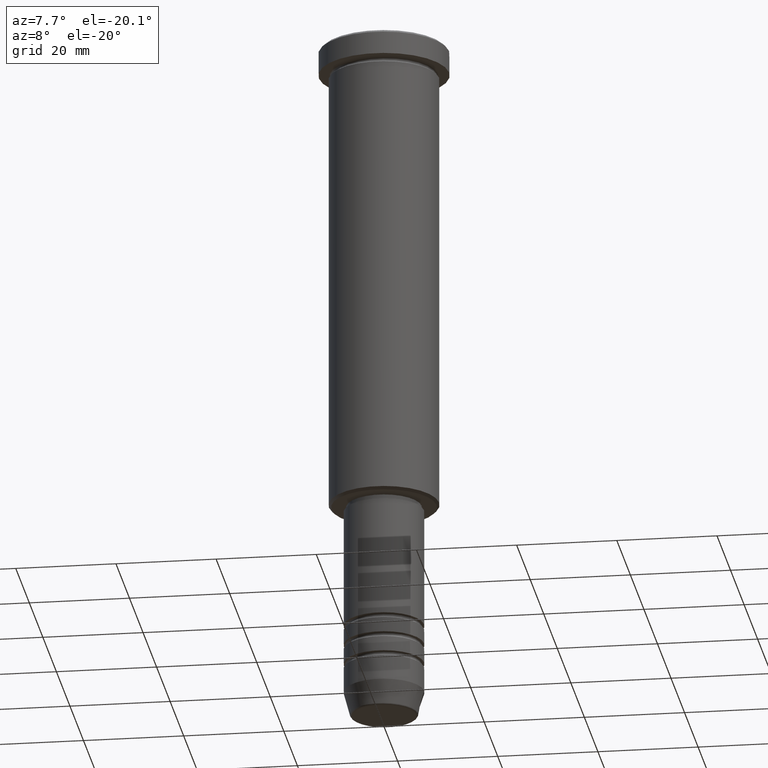
[diagram: clean part render]
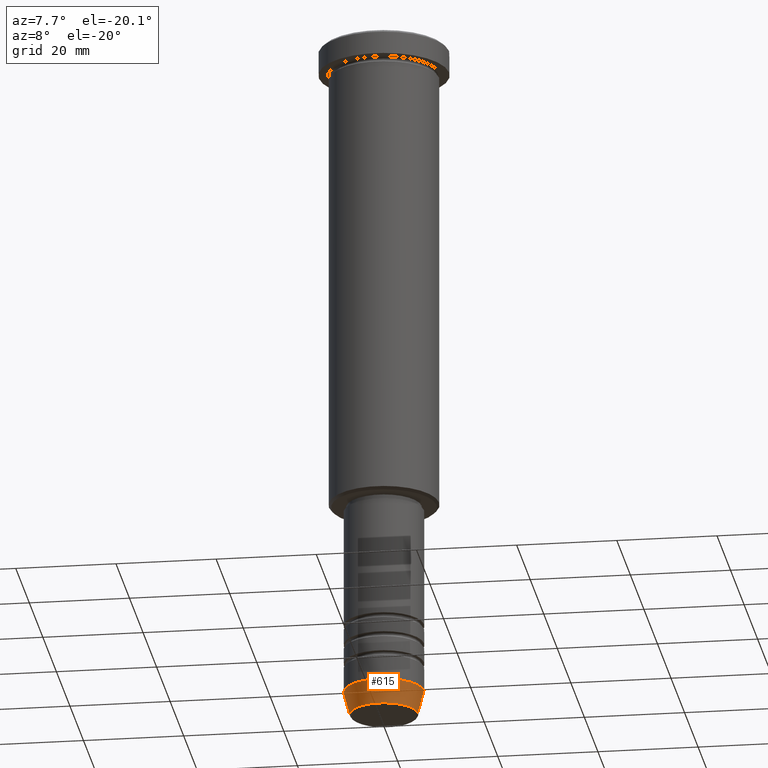
[diagram: same view with one face highlighted and labeled with its STEP entity id]
A machine part, auxiliary view. The second image highlights one B-rep face of the part: STEP entity #615.
In plain terms, the highlighted conical surface has half-angle 15 deg.
Its self-contained STEP definition (entity closure, byte-faithful):
#60 = LINE ( 'NONE', #144, #848 ) ;
#61 = ORIENTED_EDGE ( 'NONE', *, *, #540, .F. ) ;
#138 = DIRECTION ( 'NONE',  ( -0.000000000000000000, -0.000000000000000000, 1.000000000000000000 ) ) ;
#140 = DIRECTION ( 'NONE',  ( 0.2588190451025214611, 0.000000000000000000, 0.9659258262890679791 ) ) ;
#144 = CARTESIAN_POINT ( 'NONE',  ( -8.000000000000000000, 9.797174393178825657E-16, -135.0000000000000000 ) ) ;
#212 = AXIS2_PLACEMENT_3D ( 'NONE', #417, #138, #955 ) ;
#239 = DIRECTION ( 'NONE',  ( -0.2588190451025214611, 3.169619151431774186E-17, 0.9659258262890679791 ) ) ;
#274 = CARTESIAN_POINT ( 'NONE',  ( -8.000000000000000000, 9.797174393178825657E-16, -135.0000000000000000 ) ) ;
#308 = VECTOR ( 'NONE', #140, 1000.000000000000114 ) ;
#325 = AXIS2_PLACEMENT_3D ( 'NONE', #1032, #1120, #862 ) ;
#334 = EDGE_CURVE ( 'NONE', #1169, #481, #60, .T. ) ;
#335 = EDGE_CURVE ( 'NONE', #1009, #612, #512, .T. ) ;
#365 = ORIENTED_EDGE ( 'NONE', *, *, #334, .F. ) ;
#417 = CARTESIAN_POINT ( 'NONE',  ( 0.000000000000000000, 0.000000000000000000, -135.0000000000000000 ) ) ;
#418 = CIRCLE ( 'NONE', #325, 8.000000000000000000 ) ;
#430 = DIRECTION ( 'NONE',  ( 1.000000000000000000, 0.000000000000000000, 0.000000000000000000 ) ) ;
#481 = VERTEX_POINT ( 'NONE', #274 ) ;
#496 = EDGE_LOOP ( 'NONE', ( #365, #564, #991, #61 ) ) ;
#508 = CARTESIAN_POINT ( 'NONE',  ( -6.759553456999436882, 9.037619948979304241E-16, -139.6294095225512706 ) ) ;
#512 = LINE ( 'NONE', #951, #308 ) ;
#540 = EDGE_CURVE ( 'NONE', #481, #612, #418, .T. ) ;
#564 = ORIENTED_EDGE ( 'NONE', *, *, #1143, .T. ) ;
#590 = CARTESIAN_POINT ( 'NONE',  ( 8.000000000000000000, 0.000000000000000000, -135.0000000000000000 ) ) ;
#612 = VERTEX_POINT ( 'NONE', #590 ) ;
#615 = ADVANCED_FACE ( 'NONE', ( #1040 ), #623, .T. ) ;
#623 = CONICAL_SURFACE ( 'NONE', #212, 8.000000000000000000, 0.2617993877991502405 ) ;
#837 = AXIS2_PLACEMENT_3D ( 'NONE', #1168, #1044, #430 ) ;
#848 = VECTOR ( 'NONE', #239, 1000.000000000000114 ) ;
#862 = DIRECTION ( 'NONE',  ( 1.000000000000000000, 0.000000000000000000, 0.000000000000000000 ) ) ;
#951 = CARTESIAN_POINT ( 'NONE',  ( 8.000000000000000000, 0.000000000000000000, -135.0000000000000000 ) ) ;
#955 = DIRECTION ( 'NONE',  ( 1.000000000000000000, 0.000000000000000000, 0.000000000000000000 ) ) ;
#991 = ORIENTED_EDGE ( 'NONE', *, *, #335, .T. ) ;
#1009 = VERTEX_POINT ( 'NONE', #1025 ) ;
#1021 = CIRCLE ( 'NONE', #837, 6.759553456999436882 ) ;
#1025 = CARTESIAN_POINT ( 'NONE',  ( 6.759553456999436882, 0.000000000000000000, -139.6294095225512706 ) ) ;
#1032 = CARTESIAN_POINT ( 'NONE',  ( 0.000000000000000000, 0.000000000000000000, -135.0000000000000000 ) ) ;
#1040 = FACE_OUTER_BOUND ( 'NONE', #496, .T. ) ;
#1044 = DIRECTION ( 'NONE',  ( -0.000000000000000000, -0.000000000000000000, 1.000000000000000000 ) ) ;
#1120 = DIRECTION ( 'NONE',  ( -0.000000000000000000, -0.000000000000000000, 1.000000000000000000 ) ) ;
#1143 = EDGE_CURVE ( 'NONE', #1169, #1009, #1021, .T. ) ;
#1168 = CARTESIAN_POINT ( 'NONE',  ( 0.000000000000000000, 0.000000000000000000, -139.6294095225512706 ) ) ;
#1169 = VERTEX_POINT ( 'NONE', #508 ) ;